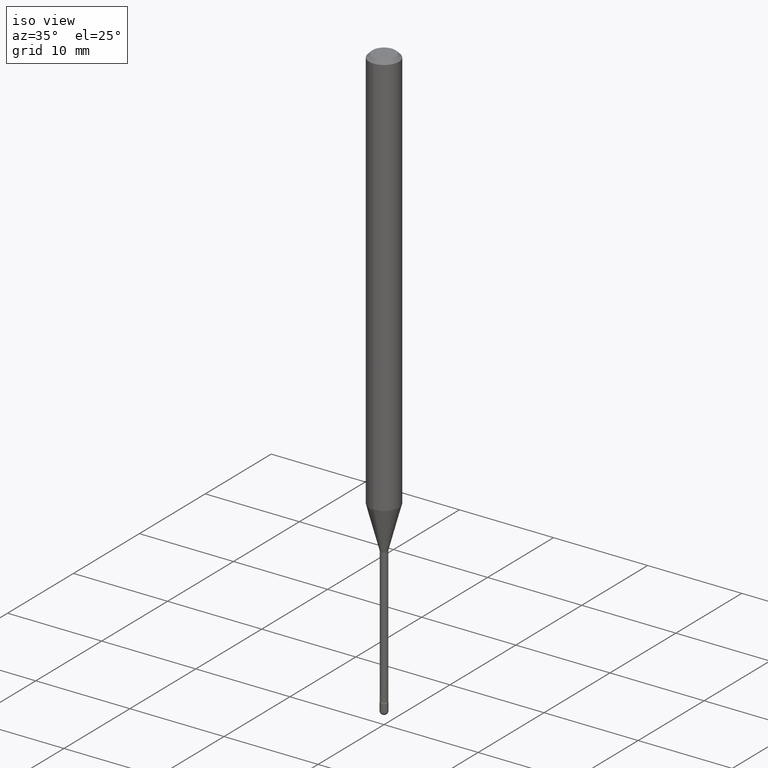
[diagram: clean part render]
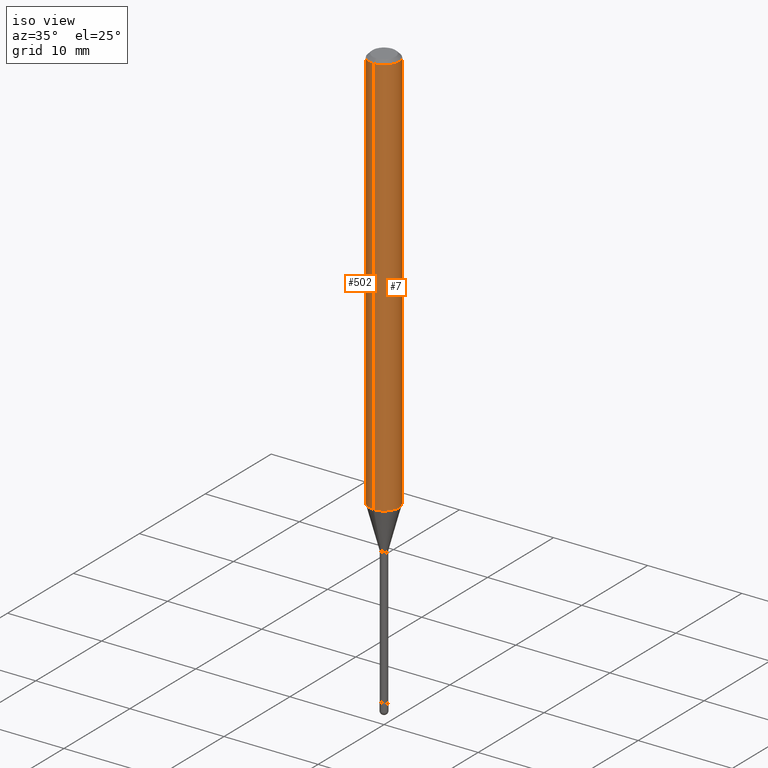
[diagram: same view with one multi-face feature highlighted, each face labeled with its STEP entity id]
A machine part, iso view. The highlighted faces form ONE feature: a constant-radius fillet chain: 2 tangent blend faces with common blend radius 1.5875 mm. The faces share edges in the B-rep.
Their STEP definitions:
[1] entity #502 (Cylinder):
#3 = VECTOR ( 'NONE', #198, 39.37007874015748143 ) ;
#47 = CARTESIAN_POINT ( 'NONE',  ( -4.364351673553916201E-16, -0.06250000000000000000, 6.962917314472697602E-16 ) ) ;
#57 = CARTESIAN_POINT ( 'NONE',  ( -1.169113584055446105E-44, 1.669184350826100908E-30, 4.780733988912460139E-16 ) ) ;
#83 = DIRECTION ( 'NONE',  ( -2.445460439162084166E-29, 3.491493320896377968E-15, 1.000000000000000000 ) ) ;
#114 = LINE ( 'NONE', #159, #182 ) ;
#153 = EDGE_LOOP ( 'NONE', ( #277, #551, #208, #328 ) ) ;
#159 = CARTESIAN_POINT ( 'NONE',  ( 4.440892098500625669E-16, 0.06250000000000000000, 2.598550663352224156E-16 ) ) ;
#179 = CIRCLE ( 'NONE', #501, 0.06250000000000000000 ) ;
#182 = VECTOR ( 'NONE', #500, 39.37007874015748143 ) ;
#195 = DIRECTION ( 'NONE',  ( -6.982962677686265922E-15, -1.000000000000000000, 3.491493320896378757E-15 ) ) ;
#198 = DIRECTION ( 'NONE',  ( -2.445460439162083885E-29, 3.491493320896377968E-15, 1.000000000000000000 ) ) ;
#199 = CARTESIAN_POINT ( 'NONE',  ( 4.440892098501044258E-16, 0.06249999999999995143, -0.01500000000000030129 ) ) ;
#208 = ORIENTED_EDGE ( 'NONE', *, *, #561, .T. ) ;
#225 = DIRECTION ( 'NONE',  ( -2.445460439162084166E-29, 3.491493320896377968E-15, 1.000000000000000000 ) ) ;
#248 = AXIS2_PLACEMENT_3D ( 'NONE', #335, #83, #257 ) ;
#257 = DIRECTION ( 'NONE',  ( -6.982962677686265922E-15, -1.000000000000000000, 4.370956789862821150E-15 ) ) ;
#270 = VERTEX_POINT ( 'NONE', #532 ) ;
#277 = ORIENTED_EDGE ( 'NONE', *, *, #469, .F. ) ;
#324 = AXIS2_PLACEMENT_3D ( 'NONE', #57, #398, #195 ) ;
#328 = ORIENTED_EDGE ( 'NONE', *, *, #553, .F. ) ;
#335 = CARTESIAN_POINT ( 'NONE',  ( 4.159845989626137311E-29, -5.939198302350697681E-15, -1.701048163777072908 ) ) ;
#350 = CARTESIAN_POINT ( 'NONE',  ( 4.440892098501039328E-16, 0.06249999999999404643, -1.701048163777073130 ) ) ;
#351 = CARTESIAN_POINT ( 'NONE',  ( 3.668190658743146304E-31, -5.237239981344595795E-17, -0.01500000000000008271 ) ) ;
#398 = DIRECTION ( 'NONE',  ( -2.445460439162084166E-29, 3.491493320896377968E-15, 1.000000000000000000 ) ) ;
#406 = CYLINDRICAL_SURFACE ( 'NONE', #324, 0.06250000000000000000 ) ;
#422 = VERTEX_POINT ( 'NONE', #199 ) ;
#433 = CARTESIAN_POINT ( 'NONE',  ( -4.364351673553500570E-16, -0.06250000000000595357, -1.701048163777072464 ) ) ;
#437 = FACE_OUTER_BOUND ( 'NONE', #153, .T. ) ;
#463 = VERTEX_POINT ( 'NONE', #350 ) ;
#469 = EDGE_CURVE ( 'NONE', #463, #422, #114, .T. ) ;
#477 = VERTEX_POINT ( 'NONE', #433 ) ;
#488 = LINE ( 'NONE', #47, #3 ) ;
#500 = DIRECTION ( 'NONE',  ( -2.445460439162083885E-29, 3.491493320896377968E-15, 1.000000000000000000 ) ) ;
#501 = AXIS2_PLACEMENT_3D ( 'NONE', #351, #225, #522 ) ;
#502 = ADVANCED_FACE ( 'NONE', ( #437 ), #406, .T. ) ;
#522 = DIRECTION ( 'NONE',  ( -6.982962677686265922E-15, -1.000000000000000000, 3.483106191921935554E-15 ) ) ;
#532 = CARTESIAN_POINT ( 'NONE',  ( -4.364351673553912750E-16, -0.06250000000000005551, -0.01499999999999986587 ) ) ;
#540 = EDGE_CURVE ( 'NONE', #463, #477, #554, .T. ) ;
#551 = ORIENTED_EDGE ( 'NONE', *, *, #540, .T. ) ;
#553 = EDGE_CURVE ( 'NONE', #422, #270, #179, .T. ) ;
#554 = CIRCLE ( 'NONE', #248, 0.06250000000000000000 ) ;
#561 = EDGE_CURVE ( 'NONE', #477, #270, #488, .T. ) ;
[2] entity #7 (Cylinder):
#3 = VECTOR ( 'NONE', #198, 39.37007874015748143 ) ;
#7 = ADVANCED_FACE ( 'NONE', ( #112 ), #542, .T. ) ;
#29 = DIRECTION ( 'NONE',  ( -6.982962677686265922E-15, -1.000000000000000000, 4.370956789862821150E-15 ) ) ;
#33 = CARTESIAN_POINT ( 'NONE',  ( 3.668190658743146304E-31, -5.237239981344595795E-17, -0.01500000000000008271 ) ) ;
#47 = CARTESIAN_POINT ( 'NONE',  ( -4.364351673553916201E-16, -0.06250000000000000000, 6.962917314472697602E-16 ) ) ;
#49 = ORIENTED_EDGE ( 'NONE', *, *, #469, .T. ) ;
#78 = DIRECTION ( 'NONE',  ( -2.445460439162084166E-29, 3.491493320896377968E-15, 1.000000000000000000 ) ) ;
#98 = ORIENTED_EDGE ( 'NONE', *, *, #536, .F. ) ;
#112 = FACE_OUTER_BOUND ( 'NONE', #180, .T. ) ;
#114 = LINE ( 'NONE', #159, #182 ) ;
#122 = DIRECTION ( 'NONE',  ( -6.982962677686265922E-15, -1.000000000000000000, 3.491493320896378757E-15 ) ) ;
#124 = DIRECTION ( 'NONE',  ( -2.445460439162084166E-29, 3.491493320896377968E-15, 1.000000000000000000 ) ) ;
#159 = CARTESIAN_POINT ( 'NONE',  ( 4.440892098500625669E-16, 0.06250000000000000000, 2.598550663352224156E-16 ) ) ;
#163 = ORIENTED_EDGE ( 'NONE', *, *, #561, .F. ) ;
#180 = EDGE_LOOP ( 'NONE', ( #390, #49, #98, #163 ) ) ;
#182 = VECTOR ( 'NONE', #500, 39.37007874015748143 ) ;
#193 = AXIS2_PLACEMENT_3D ( 'NONE', #418, #78, #29 ) ;
#198 = DIRECTION ( 'NONE',  ( -2.445460439162083885E-29, 3.491493320896377968E-15, 1.000000000000000000 ) ) ;
#199 = CARTESIAN_POINT ( 'NONE',  ( 4.440892098501044258E-16, 0.06249999999999995143, -0.01500000000000030129 ) ) ;
#255 = CIRCLE ( 'NONE', #487, 0.06250000000000000000 ) ;
#270 = VERTEX_POINT ( 'NONE', #532 ) ;
#287 = CARTESIAN_POINT ( 'NONE',  ( -1.169113584055446105E-44, 1.669184350826100908E-30, 4.780733988912460139E-16 ) ) ;
#316 = DIRECTION ( 'NONE',  ( -2.445460439162084166E-29, 3.491493320896377968E-15, 1.000000000000000000 ) ) ;
#350 = CARTESIAN_POINT ( 'NONE',  ( 4.440892098501039328E-16, 0.06249999999999404643, -1.701048163777073130 ) ) ;
#390 = ORIENTED_EDGE ( 'NONE', *, *, #417, .T. ) ;
#400 = CIRCLE ( 'NONE', #193, 0.06250000000000000000 ) ;
#417 = EDGE_CURVE ( 'NONE', #477, #463, #400, .T. ) ;
#418 = CARTESIAN_POINT ( 'NONE',  ( 4.159845989626137311E-29, -5.939198302350697681E-15, -1.701048163777072908 ) ) ;
#422 = VERTEX_POINT ( 'NONE', #199 ) ;
#431 = AXIS2_PLACEMENT_3D ( 'NONE', #287, #316, #122 ) ;
#433 = CARTESIAN_POINT ( 'NONE',  ( -4.364351673553500570E-16, -0.06250000000000595357, -1.701048163777072464 ) ) ;
#463 = VERTEX_POINT ( 'NONE', #350 ) ;
#469 = EDGE_CURVE ( 'NONE', #463, #422, #114, .T. ) ;
#477 = VERTEX_POINT ( 'NONE', #433 ) ;
#487 = AXIS2_PLACEMENT_3D ( 'NONE', #33, #124, #549 ) ;
#488 = LINE ( 'NONE', #47, #3 ) ;
#500 = DIRECTION ( 'NONE',  ( -2.445460439162083885E-29, 3.491493320896377968E-15, 1.000000000000000000 ) ) ;
#532 = CARTESIAN_POINT ( 'NONE',  ( -4.364351673553912750E-16, -0.06250000000000005551, -0.01499999999999986587 ) ) ;
#536 = EDGE_CURVE ( 'NONE', #270, #422, #255, .T. ) ;
#542 = CYLINDRICAL_SURFACE ( 'NONE', #431, 0.06250000000000000000 ) ;
#549 = DIRECTION ( 'NONE',  ( -6.982962677686265922E-15, -1.000000000000000000, 3.483106191921935554E-15 ) ) ;
#561 = EDGE_CURVE ( 'NONE', #477, #270, #488, .T. ) ;